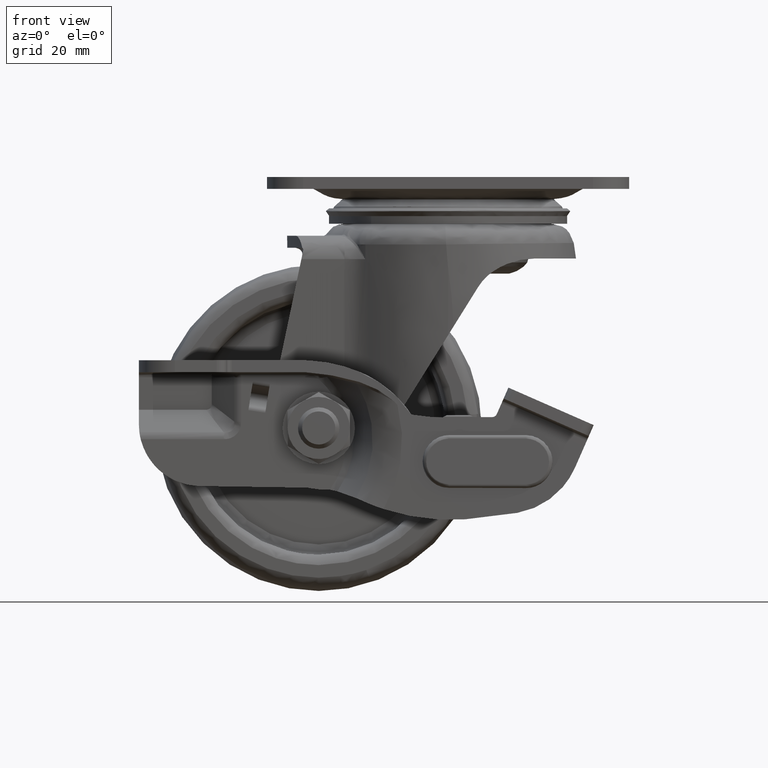
[diagram: clean part render]
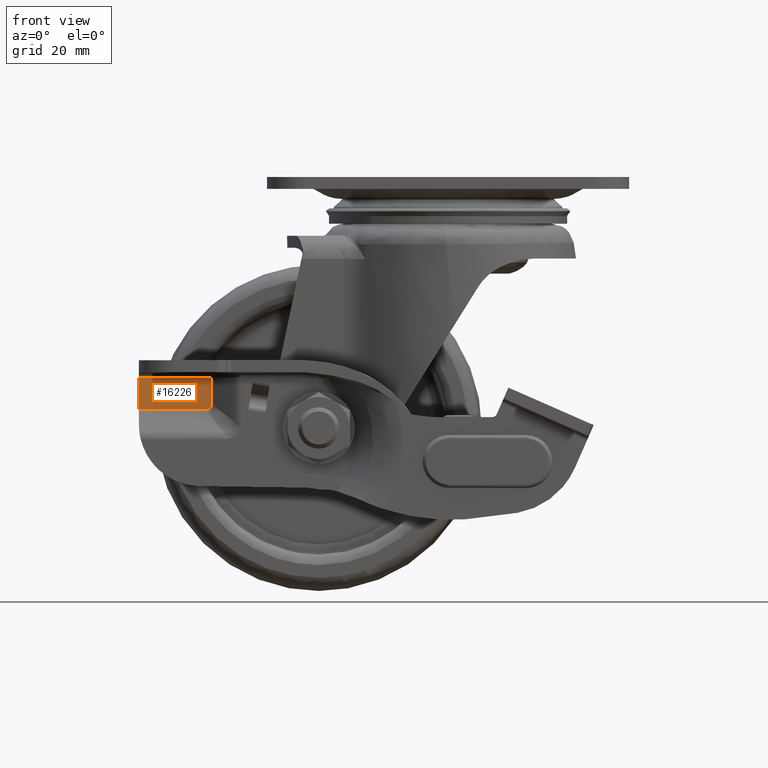
[diagram: same view with one face highlighted and labeled with its STEP entity id]
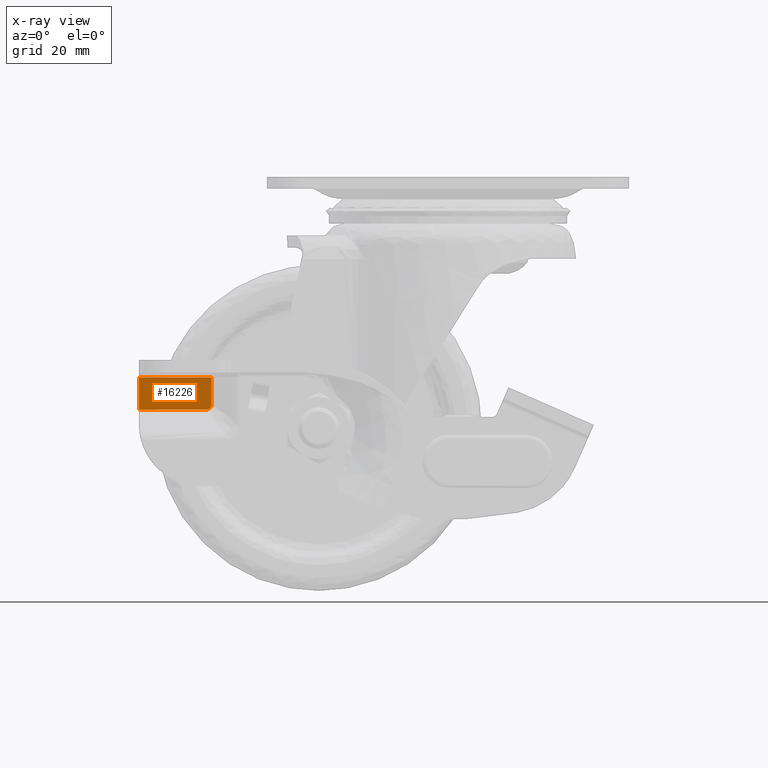
[diagram: x-ray of the same camera — body ghosted, the highlighted face saturated]
A machine part, front view. The second image highlights one B-rep face of the part: STEP entity #16226.
The next image is the same camera in x-ray: the body ghosted, the highlighted face saturated — about 0% of this face is hidden behind the body in this view.
In plain terms, the highlighted face is a freeform B-spline surface patch.
Its self-contained STEP definition (entity closure, byte-faithful):
#12042=CARTESIAN_POINT('',(-45.668757000000198,-18.063692000000000,-38.718819000000003));
#12043=VERTEX_POINT('',#12042);
#12180=CARTESIAN_POINT('',(-59.764315000000003,-18.063692000000000,-38.718819000000003));
#12181=VERTEX_POINT('',#12180);
#12194=CARTESIAN_POINT('',(-45.668757000000198,-18.063692000000000,-38.718819000000003));
#12195=CARTESIAN_POINT('',(-59.764315000000003,-18.063692000000000,-38.718819000000003));
#12196=QUASI_UNIFORM_CURVE('',1,(#12194,#12195),.UNSPECIFIED.,.F.,.U.);
#12197=EDGE_CURVE('',#12043,#12181,#12196,.T.);
#16111=CARTESIAN_POINT('',(-46.761808576297007,-18.063692000000000,-44.976090000000013));
#16112=VERTEX_POINT('',#16111);
#16131=CARTESIAN_POINT('',(-45.668757000000198,-18.063692000000000,-43.883038423703198));
#16132=VERTEX_POINT('',#16131);
#16138=CARTESIAN_POINT('',(-46.761808576297007,-18.063692000000000,-44.976090000000013));
#16139=CARTESIAN_POINT('',(-46.688830098802562,-18.063692000000000,-44.976090000000021));
#16140=CARTESIAN_POINT('',(-46.616785550680248,-18.063692000000010,-44.970791094452139));
#16141=CARTESIAN_POINT('',(-46.474796634062628,-18.063692000000010,-44.948277335738823));
#16142=CARTESIAN_POINT('',(-46.404847901047752,-18.063692000000000,-44.931087245877329));
#16143=CARTESIAN_POINT('',(-46.301829522875060,-18.063692000000000,-44.894495149844190));
#16144=CARTESIAN_POINT('',(-46.267885309465882,-18.063692000000170,-44.880478772858048));
#16145=CARTESIAN_POINT('',(-46.202372110509430,-18.063692000000170,-44.849254243881767));
#16146=CARTESIAN_POINT('',(-46.138819403750247,-18.063692000000010,-44.814702048665993));
#16147=CARTESIAN_POINT('',(-46.079341871389971,-18.063692000000000,-44.773232804617336));
#16148=CARTESIAN_POINT('',(-46.022024981404407,-18.063692000000000,-44.728096166893003));
#16149=CARTESIAN_POINT('',(-45.994504765451971,-18.063692000000071,-44.703692345742560));
#16150=CARTESIAN_POINT('',(-45.917436856493687,-18.063692000000081,-44.626863459521452));
#16151=CARTESIAN_POINT('',(-45.872552800772219,-18.063692000000000,-44.570256133589297));
#16152=CARTESIAN_POINT('',(-45.814700602109653,-18.063692000000000,-44.477485333237787));
#16153=CARTESIAN_POINT('',(-45.797029171247601,-18.063692000000010,-44.445227447283813));
#16154=CARTESIAN_POINT('',(-45.765555957783647,-18.063692000000010,-44.379693972318400));
#16155=CARTESIAN_POINT('',(-45.737700420695212,-18.063691999999989,-44.312768344014387));
#16156=CARTESIAN_POINT('',(-45.716577556768030,-18.063692000000010,-44.243251850070251));
#16157=CARTESIAN_POINT('',(-45.698647696126741,-18.063692000000000,-44.172506625382091));
#16158=CARTESIAN_POINT('',(-45.691312046571838,-18.063692000000000,-44.136591577902841));
#16159=CARTESIAN_POINT('',(-45.674072483547903,-18.063692000000010,-44.028747039494817));
#16160=CARTESIAN_POINT('',(-45.668757000000213,-18.063692000000000,-43.956180891694387));
#16161=CARTESIAN_POINT('',(-45.668757000000198,-18.063692000000000,-43.883038423703198));
#16162=B_SPLINE_CURVE_WITH_KNOTS('',3,(#16138,#16139,#16140,#16141,#16142,#16143,#16144,#16145,#16146,#16147,#16148,#16149,#16150,#16151,#16152,#16153,#16154,#16155,#16156,#16157,#16158,#16159,#16160,#16161),.UNSPECIFIED.,.F.,.U.,(4,2,2,2,1,2,2,2,2,1,2,2,4),(0.0,0.124999999999992,0.249999999999984,0.312499999999985,0.374999999999987,0.437499999999988,0.499999999999990,0.624999999999984,0.687499999999986,0.749999999999989,0.812499999999991,0.874999999999993,1.0),.UNSPECIFIED.);
#16163=EDGE_CURVE('',#16112,#16132,#16162,.T.);
#16176=CARTESIAN_POINT('',(-45.668757000000198,-18.063692000000000,-43.883038423703198));
#16177=CARTESIAN_POINT('',(-45.668757000000198,-18.063692000000000,-38.718819000000003));
#16178=QUASI_UNIFORM_CURVE('',1,(#16176,#16177),.UNSPECIFIED.,.F.,.U.);
#16179=EDGE_CURVE('',#16132,#12043,#16178,.T.);
#16195=CARTESIAN_POINT('',(-59.764315000000003,-18.063692000000000,-44.976090000000013));
#16196=VERTEX_POINT('',#16195);
#16197=CARTESIAN_POINT('',(-59.764315000000003,-18.063692000000000,-44.976090000000013));
#16198=CARTESIAN_POINT('',(-46.761808576297007,-18.063692000000000,-44.976090000000013));
#16199=QUASI_UNIFORM_CURVE('',1,(#16197,#16198),.UNSPECIFIED.,.F.,.U.);
#16200=EDGE_CURVE('',#16196,#16112,#16199,.T.);
#16210=CARTESIAN_POINT('',(-60.468389714208769,-18.063692000000000,-38.406268017955853));
#16211=CARTESIAN_POINT('',(-44.964685562418268,-18.063692000000000,-38.406268017955853));
#16212=CARTESIAN_POINT('',(-60.468389714208783,-18.063692000000000,-45.288639919101293));
#16213=CARTESIAN_POINT('',(-44.964685562418268,-18.063692000000000,-45.288639919101293));
#16214=B_SPLINE_SURFACE_WITH_KNOTS('',1,1,((#16210,#16212),(#16211,#16213)),.UNSPECIFIED.,.F.,.F.,.U.,(2,2),(2,2),(0.0,15.503704151790510),(0.0,6.882371901145447),.UNSPECIFIED.);
#16215=ORIENTED_EDGE('',*,*,#16179,.T.);
#16216=ORIENTED_EDGE('',*,*,#12197,.T.);
#16217=CARTESIAN_POINT('',(-59.764315000000003,-18.063692000000000,-44.976090000000013));
#16218=CARTESIAN_POINT('',(-59.764315000000003,-18.063692000000000,-38.718819000000003));
#16219=QUASI_UNIFORM_CURVE('',1,(#16217,#16218),.UNSPECIFIED.,.F.,.U.);
#16220=EDGE_CURVE('',#16196,#12181,#16219,.T.);
#16221=ORIENTED_EDGE('',*,*,#16220,.F.);
#16222=ORIENTED_EDGE('',*,*,#16200,.T.);
#16223=ORIENTED_EDGE('',*,*,#16163,.T.);
#16224=EDGE_LOOP('',(#16215,#16216,#16221,#16222,#16223));
#16225=FACE_OUTER_BOUND('',#16224,.T.);
#16226=ADVANCED_FACE('',(#16225),#16214,.F.);